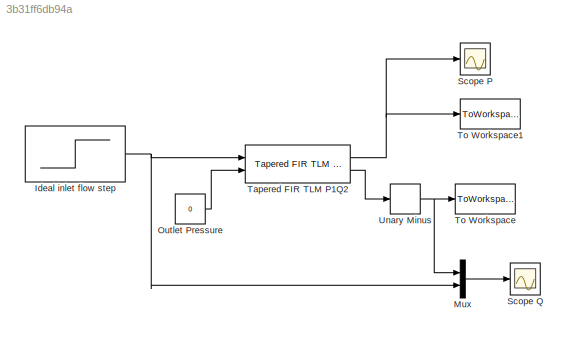
MODEL slx_3b31ff6db94a
KIND model
CONFIG AbsTol = auto
CONFIG EnableMultiTasking = on
CONFIG FixedStep = auto
CONFIG MaxStep = auto
CONFIG MinStep = auto
CONFIG RelTol = 1e-6
CONFIG SampleTimeConstraint = Unconstrained
CONFIG Solver = ode23t
CONFIG SolverName = ode23t
CONFIG StartTime = 0.0
CONFIG StopTime = 2
BLOCK [Step] Ideal inlet flow step
  After = 2.5e-4
  SampleTime = 0
BLOCK [Mux] Mux
  DisplayOption = bar
  Inputs = 2
  Ports = [2, 1]
BLOCK [Constant] Outlet Pressure
  Value = 0
BLOCK [Scope] Scope P
  NumInputPorts = 1
  Ports = [1]
  ScopeSpecificationString = C++SS(StrPVP('Location','[10, 60, 1926, 1050]'),StrPVP('Open','off'),StrPVP('ZoomMode','xonly'),MxPVP('AxesTitles',53,'struct(''axes1'',''%<SignalLabel>'')'),MxPVP('ScopeGraphics',56,'struct(''FigureColor'',''[0.5 0.5 0.5]'',''AxesColor'',''[0 0 0]'',''AxesTickColor'',''[1 1 1]'',''LineColors'',''[1 1 0;1 0 1;0 1 1;1 0 0;0 1 0;0 0 1]'',''LineStyles'',''-|-|-|-|-|-'',''LineWidths'',''[0.5 0.5 0.5 0...<+286ch>
BLOCK [Scope] Scope Q
  NumInputPorts = 1
  Ports = [1]
  ScopeSpecificationString = Simulink.scopes.TimeScopeBlockCfg('CurrentConfiguration', extmgr.ConfigurationSet(extmgr.Configuration('Core','General UI',true),extmgr.Configuration('Core','Source UI',true),extmgr.Configuration('Sources','WiredSimulink',true,'DataLoggingSaveFormat','Array','DataLoggingDecimation','1','DataLoggingDecimateData',true),extmgr.Configuration('Visuals','Time Domain',true,'SerializedDisplays',{struct('M...<+1747ch>
BLOCK [Reference] Tapered FIR TLM P1Q2  REF=usask_tlm_lib/Tapered FIR TLM P1Q2  (lib defined in slx_28caae7ed30f)
  Ports = [2, 2]
  SourceBlock = usask_tlm_lib/Tapered FIR TLM P1Q2
  SourceProductName = USask Transmission Line Model Library
  SourceType = Tapered Hydraulic Transmission Line (TLM)
BLOCK [ToWorkspace] To Workspace
  FixptAsFi = on
  MaxDataPoints = inf
  Ports = [1]
  SampleTime = -1
  Save2DSignal = 3-D array (concatenate along third dimension)
  VariableName = Q_out
BLOCK [ToWorkspace] To Workspace1
  FixptAsFi = on
  MaxDataPoints = inf
  Ports = [1]
  SampleTime = -1
  Save2DSignal = 3-D array (concatenate along third dimension)
  VariableName = P_out
BLOCK [UnaryMinus] Unary Minus
NET Ideal inlet flow step:1 -> Mux:2, Tapered FIR TLM P1Q2:1
LINE Mux:1 -> Scope Q:1
LINE Outlet Pressure:1 -> Tapered FIR TLM P1Q2:2
NET Tapered FIR TLM P1Q2:1 -> Scope P:1, To Workspace1:1
LINE Tapered FIR TLM P1Q2:2 -> Unary Minus:1
NET Unary Minus:1 -> Mux:1, To Workspace:1
note: NET lines group one-source signal fan-out (src -> all destinations, sorted); 1:1 wires keep LINE
